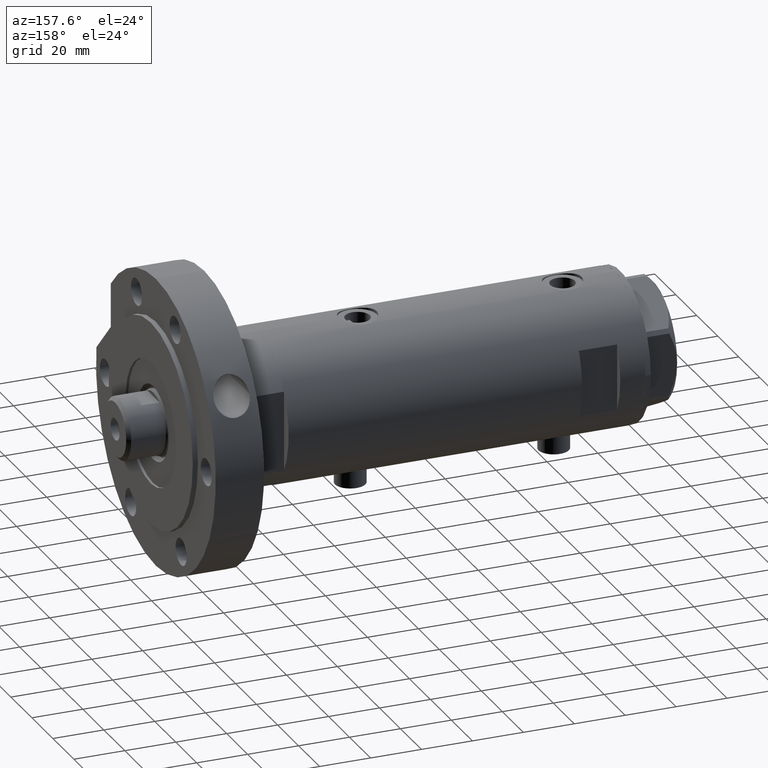
[diagram: clean part render]
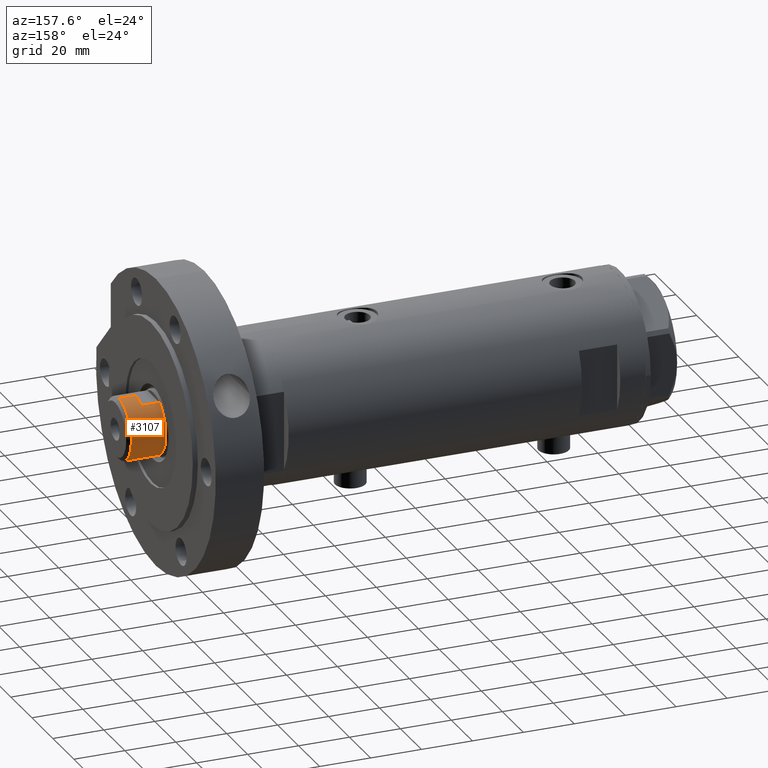
[diagram: same view with one face highlighted and labeled with its STEP entity id]
A machine part, auxiliary view. The second image highlights one B-rep face of the part: STEP entity #3107.
In plain terms, the highlighted cylindrical surface (edge-blend (fillet) strip) has radius 12 mm, axis along (-1, -0, 0).
Its self-contained STEP definition (entity closure, byte-faithful):
#83 = AXIS2_PLACEMENT_3D ( 'NONE', #2944, #1132, #2397 ) ;
#84 = CARTESIAN_POINT ( 'NONE',  ( -10.48861764008966269, 5.829999999999960991, 157.7000000000000171 ) ) ;
#230 = EDGE_CURVE ( 'NONE', #4205, #4948, #4376, .T. ) ;
#317 = DIRECTION ( 'NONE',  ( -1.000000000000000000, 0.000000000000000000, 0.000000000000000000 ) ) ;
#324 = LINE ( 'NONE', #3241, #1254 ) ;
#644 = ORIENTED_EDGE ( 'NONE', *, *, #2661, .T. ) ;
#650 = DIRECTION ( 'NONE',  ( 0.000000000000000000, 0.000000000000000000, 1.000000000000000000 ) ) ;
#721 = DIRECTION ( 'NONE',  ( -0.000000000000000000, -0.000000000000000000, -1.000000000000000000 ) ) ;
#787 = ORIENTED_EDGE ( 'NONE', *, *, #230, .T. ) ;
#1129 = CARTESIAN_POINT ( 'NONE',  ( 12.00000000000000000, 1.469576158976823947E-15, 164.7000000000000171 ) ) ;
#1132 = DIRECTION ( 'NONE',  ( 0.000000000000000000, 0.000000000000000000, 1.000000000000000000 ) ) ;
#1171 = ORIENTED_EDGE ( 'NONE', *, *, #2055, .T. ) ;
#1173 = CYLINDRICAL_SURFACE ( 'NONE', #3336, 12.00000000000000000 ) ;
#1239 = EDGE_CURVE ( 'NONE', #4982, #2941, #2543, .T. ) ;
#1254 = VECTOR ( 'NONE', #2253, 1000.000000000000000 ) ;
#1265 = CIRCLE ( 'NONE', #4723, 11.99999999999998224 ) ;
#1340 = AXIS2_PLACEMENT_3D ( 'NONE', #2787, #1455, #6115 ) ;
#1455 = DIRECTION ( 'NONE',  ( 0.000000000000000000, 0.000000000000000000, -1.000000000000000000 ) ) ;
#1556 = CARTESIAN_POINT ( 'NONE',  ( 10.48861764008966269, 5.830000000000000071, 164.7000000000000171 ) ) ;
#1711 = FACE_OUTER_BOUND ( 'NONE', #3399, .T. ) ;
#1963 = EDGE_CURVE ( 'NONE', #4982, #2718, #324, .T. ) ;
#2033 = CARTESIAN_POINT ( 'NONE',  ( 10.48861764008966269, 5.830000000000000071, 164.7000000000000171 ) ) ;
#2055 = EDGE_CURVE ( 'NONE', #4615, #4205, #2148, .T. ) ;
#2148 = CIRCLE ( 'NONE', #5309, 12.00000000000000178 ) ;
#2234 = CARTESIAN_POINT ( 'NONE',  ( 12.00000000000000000, 1.469576158976823947E-15, 171.3000000000000114 ) ) ;
#2253 = DIRECTION ( 'NONE',  ( -0.000000000000000000, -0.000000000000000000, -1.000000000000000000 ) ) ;
#2397 = DIRECTION ( 'NONE',  ( 1.000000000000000000, 0.000000000000000000, 0.000000000000000000 ) ) ;
#2467 = CARTESIAN_POINT ( 'NONE',  ( 0.000000000000000000, 0.000000000000000000, 157.7000000000000171 ) ) ;
#2469 = CARTESIAN_POINT ( 'NONE',  ( -12.00000000000000355, 0.000000000000000000, 164.7000000000000171 ) ) ;
#2543 = CIRCLE ( 'NONE', #1340, 12.00000000000000000 ) ;
#2600 = DIRECTION ( 'NONE',  ( 1.000000000000000000, 0.000000000000000000, 0.000000000000000000 ) ) ;
#2629 = ORIENTED_EDGE ( 'NONE', *, *, #1963, .F. ) ;
#2661 = EDGE_CURVE ( 'NONE', #3837, #2718, #3727, .T. ) ;
#2718 = VERTEX_POINT ( 'NONE', #2469 ) ;
#2787 = CARTESIAN_POINT ( 'NONE',  ( 0.000000000000000000, 0.000000000000000000, 171.3000000000000114 ) ) ;
#2838 = EDGE_CURVE ( 'NONE', #3837, #6004, #5645, .T. ) ;
#2878 = EDGE_CURVE ( 'NONE', #4948, #6004, #1265, .T. ) ;
#2899 = ORIENTED_EDGE ( 'NONE', *, *, #2838, .F. ) ;
#2919 = CARTESIAN_POINT ( 'NONE',  ( -10.48861764008966269, 5.829999999999999183, 164.7000000000000171 ) ) ;
#2941 = VERTEX_POINT ( 'NONE', #2234 ) ;
#2944 = CARTESIAN_POINT ( 'NONE',  ( 0.000000000000000000, 0.000000000000000000, 164.7000000000000171 ) ) ;
#3087 = DIRECTION ( 'NONE',  ( 0.000000000000000000, 0.000000000000000000, 1.000000000000000000 ) ) ;
#3096 = ORIENTED_EDGE ( 'NONE', *, *, #2878, .T. ) ;
#3107 = ADVANCED_FACE ( 'NONE', ( #1711 ), #1173, .T. ) ;
#3169 = CARTESIAN_POINT ( 'NONE',  ( 0.000000000000000000, 0.000000000000000000, 164.7000000000000171 ) ) ;
#3241 = CARTESIAN_POINT ( 'NONE',  ( -12.00000000000000000, 0.000000000000000000, 164.7000000000000171 ) ) ;
#3336 = AXIS2_PLACEMENT_3D ( 'NONE', #3169, #721, #317 ) ;
#3399 = EDGE_LOOP ( 'NONE', ( #5681, #3586, #1171, #787, #3096, #2899, #644, #2629 ) ) ;
#3408 = DIRECTION ( 'NONE',  ( 1.000000000000000000, 0.000000000000000000, 0.000000000000000000 ) ) ;
#3509 = DIRECTION ( 'NONE',  ( -0.000000000000000000, -0.000000000000000000, -1.000000000000000000 ) ) ;
#3586 = ORIENTED_EDGE ( 'NONE', *, *, #4627, .T. ) ;
#3727 = CIRCLE ( 'NONE', #83, 12.00000000000000178 ) ;
#3837 = VERTEX_POINT ( 'NONE', #2919 ) ;
#3913 = DIRECTION ( 'NONE',  ( -0.000000000000000000, -0.000000000000000000, -1.000000000000000000 ) ) ;
#3932 = VECTOR ( 'NONE', #3509, 1000.000000000000000 ) ;
#4008 = VECTOR ( 'NONE', #3913, 1000.000000000000000 ) ;
#4205 = VERTEX_POINT ( 'NONE', #1556 ) ;
#4376 = LINE ( 'NONE', #2033, #4008 ) ;
#4615 = VERTEX_POINT ( 'NONE', #5400 ) ;
#4626 = DIRECTION ( 'NONE',  ( -0.000000000000000000, -0.000000000000000000, -1.000000000000000000 ) ) ;
#4627 = EDGE_CURVE ( 'NONE', #2941, #4615, #5856, .T. ) ;
#4723 = AXIS2_PLACEMENT_3D ( 'NONE', #2467, #650, #3408 ) ;
#4948 = VERTEX_POINT ( 'NONE', #5266 ) ;
#4982 = VERTEX_POINT ( 'NONE', #5456 ) ;
#5266 = CARTESIAN_POINT ( 'NONE',  ( 10.48861764008966269, 5.830000000000000071, 157.7000000000000171 ) ) ;
#5309 = AXIS2_PLACEMENT_3D ( 'NONE', #5867, #3087, #2600 ) ;
#5400 = CARTESIAN_POINT ( 'NONE',  ( 12.00000000000000355, 1.469576158976824342E-15, 164.7000000000000171 ) ) ;
#5456 = CARTESIAN_POINT ( 'NONE',  ( -12.00000000000000000, 0.000000000000000000, 171.3000000000000114 ) ) ;
#5512 = VECTOR ( 'NONE', #4626, 1000.000000000000000 ) ;
#5582 = CARTESIAN_POINT ( 'NONE',  ( -10.48861764008966269, 5.829999999999999183, 164.7000000000000171 ) ) ;
#5645 = LINE ( 'NONE', #5582, #5512 ) ;
#5681 = ORIENTED_EDGE ( 'NONE', *, *, #1239, .T. ) ;
#5856 = LINE ( 'NONE', #1129, #3932 ) ;
#5867 = CARTESIAN_POINT ( 'NONE',  ( 0.000000000000000000, 0.000000000000000000, 164.7000000000000171 ) ) ;
#6004 = VERTEX_POINT ( 'NONE', #84 ) ;
#6115 = DIRECTION ( 'NONE',  ( 1.000000000000000000, 0.000000000000000000, 0.000000000000000000 ) ) ;